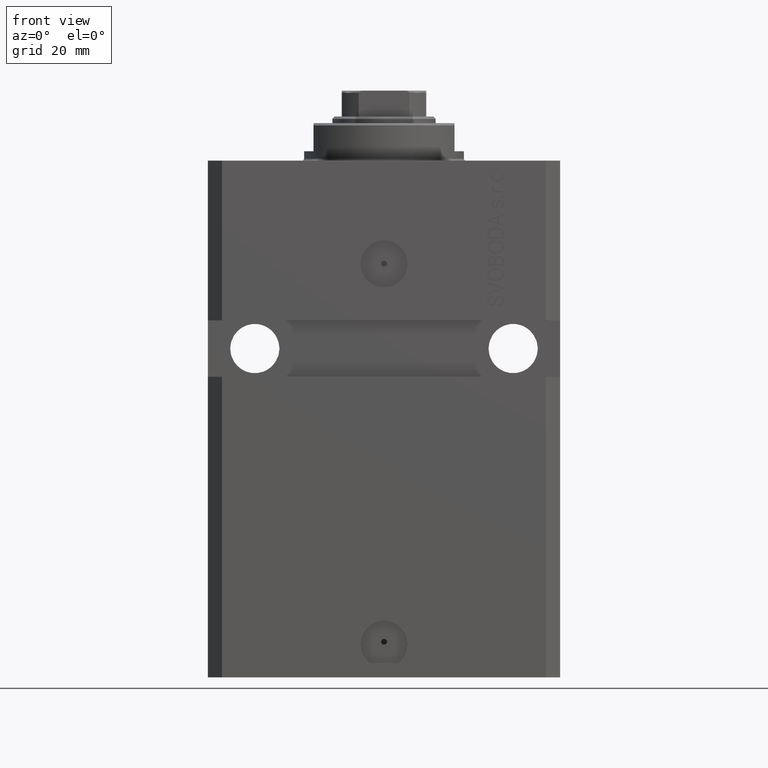
[diagram: clean part render]
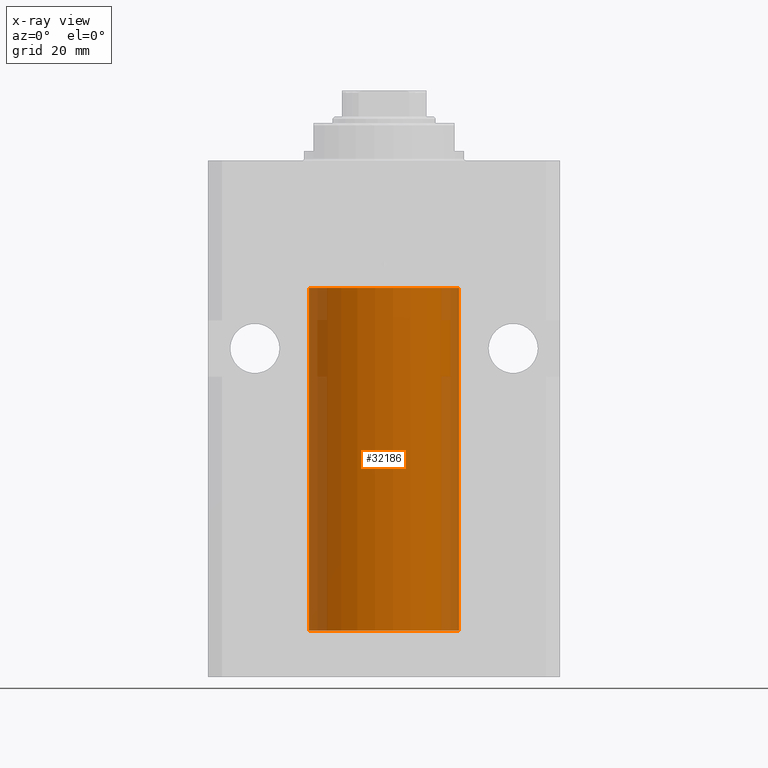
[diagram: x-ray — body ghosted, one internal face saturated and labeled with its STEP entity id]
A machine part, front view, then the same camera in x-ray: the body is ghosted and one INTERNAL B-rep face — a face not visible from any outside direction — is saturated and labeled: STEP entity #32186.
In plain terms, the highlighted cylindrical surface (partial cylindrical patch) has radius 16 mm, axis along (0, 0, 1).
Its self-contained STEP definition (entity closure, byte-faithful):
#1160 = ORIENTED_EDGE ( 'NONE', *, *, #11594, .F. ) ;
#1515 = CARTESIAN_POINT ( 'NONE',  ( -16.00000000000013145, 3.685127046438747128E-13, -98.62500000000343903 ) ) ;
#2505 = ORIENTED_EDGE ( 'NONE', *, *, #9986, .T. ) ;
#2603 = ORIENTED_EDGE ( 'NONE', *, *, #24680, .T. ) ;
#3427 = CARTESIAN_POINT ( 'NONE',  ( -16.00000000000000000, 1.959434878635765131E-15, -100.0999999999999943 ) ) ;
#4094 = VERTEX_POINT ( 'NONE', #41441 ) ;
#4463 = CARTESIAN_POINT ( 'NONE',  ( -16.00000000000000000, -0.1651602165840288794, -97.37500000000001421 ) ) ;
#4891 = CARTESIAN_POINT ( 'NONE',  ( -16.00000000000000711, -0.1631344205875864539, -98.62500000000012790 ) ) ;
#4996 = AXIS2_PLACEMENT_3D ( 'NONE', #33014, #30127, #8360 ) ;
#5541 = LINE ( 'NONE', #26504, #19691 ) ;
#5852 = VECTOR ( 'NONE', #20814, 1000.000000000000000 ) ;
#8169 = CARTESIAN_POINT ( 'NONE',  ( -16.00000000000000000, 1.959434878635765131E-15, -100.0999999999999943 ) ) ;
#8360 = DIRECTION ( 'NONE',  ( 1.000000000000000000, 0.000000000000000000, 0.000000000000000000 ) ) ;
#8923 = DIRECTION ( 'NONE',  ( -0.000000000000000000, -0.000000000000000000, 1.000000000000000000 ) ) ;
#9986 = EDGE_CURVE ( 'NONE', #17112, #17357, #22192, .T. ) ;
#11504 = DIRECTION ( 'NONE',  ( 0.000000000000000000, 0.000000000000000000, 1.000000000000000000 ) ) ;
#11594 = EDGE_CURVE ( 'NONE', #36190, #43261, #5541, .T. ) ;
#12821 = CIRCLE ( 'NONE', #4996, 16.00000000000000000 ) ;
#12876 = AXIS2_PLACEMENT_3D ( 'NONE', #39098, #11504, #35336 ) ;
#13224 = ORIENTED_EDGE ( 'NONE', *, *, #25331, .T. ) ;
#13846 = VERTEX_POINT ( 'NONE', #26229 ) ;
#13943 = VECTOR ( 'NONE', #18849, 1000.000000000000000 ) ;
#15599 = FACE_OUTER_BOUND ( 'NONE', #28799, .T. ) ;
#16316 = ORIENTED_EDGE ( 'NONE', *, *, #34709, .F. ) ;
#17112 = VERTEX_POINT ( 'NONE', #35880 ) ;
#17357 = VERTEX_POINT ( 'NONE', #1515 ) ;
#17621 = CARTESIAN_POINT ( 'NONE',  ( -15.99707459521409625, -0.3269651631532106140, -97.44291848928558863 ) ) ;
#18849 = DIRECTION ( 'NONE',  ( -0.000000000000000000, -0.000000000000000000, 1.000000000000000000 ) ) ;
#19691 = VECTOR ( 'NONE', #36286, 1000.000000000000000 ) ;
#20494 = CARTESIAN_POINT ( 'NONE',  ( 16.00000000000000000, 0.000000000000000000, -100.0999999999999943 ) ) ;
#20814 = DIRECTION ( 'NONE',  ( -0.000000000000000000, -0.000000000000000000, 1.000000000000000000 ) ) ;
#21401 = CARTESIAN_POINT ( 'NONE',  ( -16.00000000000000000, -1.303459030566954747E-14, -97.37500000000000000 ) ) ;
#22192 = LINE ( 'NONE', #8169, #13943 ) ;
#24264 = CIRCLE ( 'NONE', #12876, 16.00000000000000000 ) ;
#24680 = EDGE_CURVE ( 'NONE', #17357, #13846, #34705, .T. ) ;
#24739 = CARTESIAN_POINT ( 'NONE',  ( -16.00000000000013145, 3.685127046438747128E-13, -98.62500000000343903 ) ) ;
#25179 = CARTESIAN_POINT ( 'NONE',  ( -15.98779367741636648, -0.6248626626677354912, -98.16539631985041581 ) ) ;
#25331 = EDGE_CURVE ( 'NONE', #4094, #43261, #12821, .T. ) ;
#25406 = CARTESIAN_POINT ( 'NONE',  ( -15.99069874693027948, -0.5575440858643423425, -97.67382425011452085 ) ) ;
#25869 = CARTESIAN_POINT ( 'NONE',  ( 0.000000000000000000, 0.000000000000000000, -100.0999999999999943 ) ) ;
#26229 = CARTESIAN_POINT ( 'NONE',  ( -16.00000000000000000, -1.303459030566954747E-14, -97.37500000000000000 ) ) ;
#26504 = CARTESIAN_POINT ( 'NONE',  ( 16.00000000000000000, 0.000000000000000000, -100.0999999999999943 ) ) ;
#28534 = CARTESIAN_POINT ( 'NONE',  ( -15.99071965633095793, -0.5569502390237154321, -98.32709508218682970 ) ) ;
#28799 = EDGE_LOOP ( 'NONE', ( #16316, #2505, #2603, #38387, #13224, #1160 ) ) ;
#29207 = CYLINDRICAL_SURFACE ( 'NONE', #34153, 16.00000000000000000 ) ;
#30127 = DIRECTION ( 'NONE',  ( 0.000000000000000000, 0.000000000000000000, 1.000000000000000000 ) ) ;
#32186 = ADVANCED_FACE ( 'NONE', ( #15599 ), #29207, .F. ) ;
#33014 = CARTESIAN_POINT ( 'NONE',  ( 0.000000000000000000, 0.000000000000000000, -27.10000000000000142 ) ) ;
#33961 = LINE ( 'NONE', #3427, #5852 ) ;
#34153 = AXIS2_PLACEMENT_3D ( 'NONE', #25869, #8923, #36101 ) ;
#34705 = B_SPLINE_CURVE_WITH_KNOTS ( 'NONE', 3,
 ( #24739, #4891, #42312, #28534, #25179, #38965, #25406, #17621, #4463, #21401 ),
 .UNSPECIFIED., .F., .F.,
 ( 4, 2, 2, 2, 4 ),
 ( 0.001954221322144760863, 0.002442665739568255709, 0.002931110156991750121, 0.003419554574415244966, 0.003907998991838739812 ),
 .UNSPECIFIED. ) ;
#34709 = EDGE_CURVE ( 'NONE', #17112, #36190, #24264, .T. ) ;
#35336 = DIRECTION ( 'NONE',  ( 1.000000000000000000, 0.000000000000000000, 0.000000000000000000 ) ) ;
#35880 = CARTESIAN_POINT ( 'NONE',  ( -16.00000000000000000, 1.959434878635765131E-15, -100.0999999999999943 ) ) ;
#36101 = DIRECTION ( 'NONE',  ( 1.000000000000000000, 0.000000000000000000, 0.000000000000000000 ) ) ;
#36190 = VERTEX_POINT ( 'NONE', #20494 ) ;
#36286 = DIRECTION ( 'NONE',  ( -0.000000000000000000, -0.000000000000000000, 1.000000000000000000 ) ) ;
#38387 = ORIENTED_EDGE ( 'NONE', *, *, #40693, .T. ) ;
#38598 = CARTESIAN_POINT ( 'NONE',  ( 16.00000000000000000, 0.000000000000000000, -27.10000000000000142 ) ) ;
#38965 = CARTESIAN_POINT ( 'NONE',  ( -15.98778295664474491, -0.6251369050462269872, -97.83564325457868449 ) ) ;
#39098 = CARTESIAN_POINT ( 'NONE',  ( 0.000000000000000000, 0.000000000000000000, -100.0999999999999943 ) ) ;
#40693 = EDGE_CURVE ( 'NONE', #13846, #4094, #33961, .T. ) ;
#41441 = CARTESIAN_POINT ( 'NONE',  ( -16.00000000000000000, 1.959434878635765131E-15, -27.10000000000000142 ) ) ;
#42312 = CARTESIAN_POINT ( 'NONE',  ( -15.99708815688950381, -0.3263115027449080552, -98.55740969198227219 ) ) ;
#43261 = VERTEX_POINT ( 'NONE', #38598 ) ;